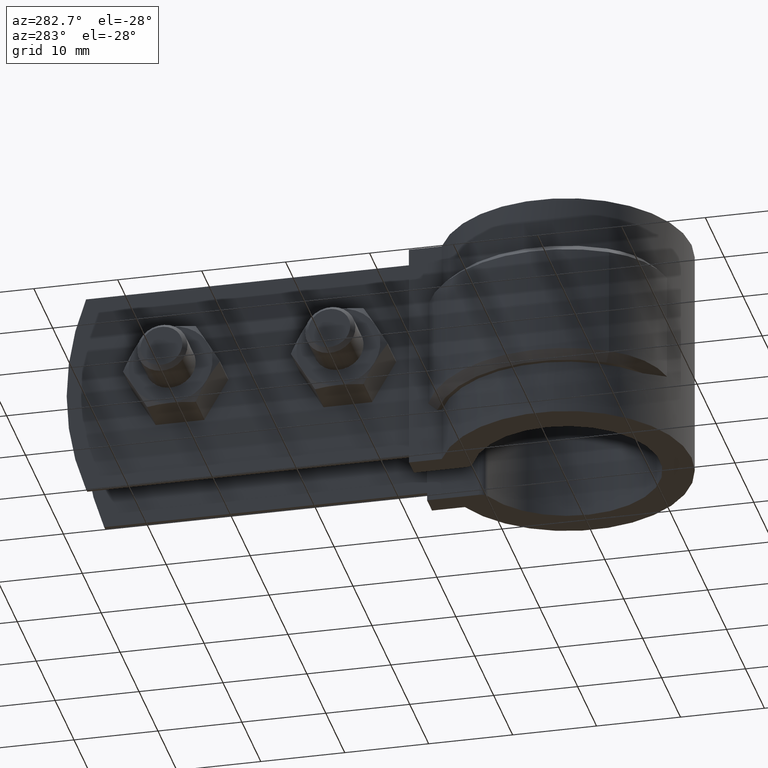
[diagram: clean part render]
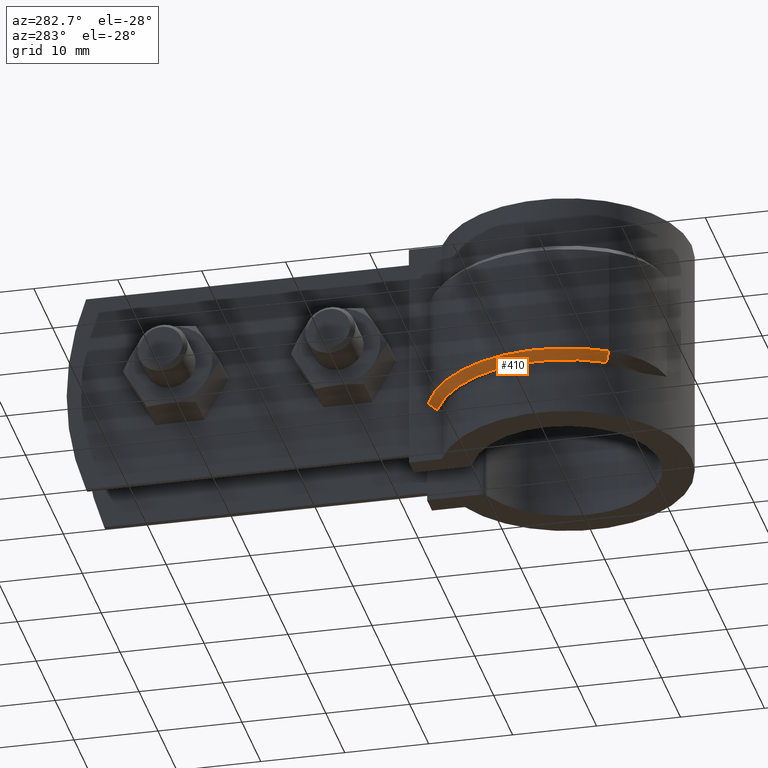
[diagram: same view with one face highlighted and labeled with its STEP entity id]
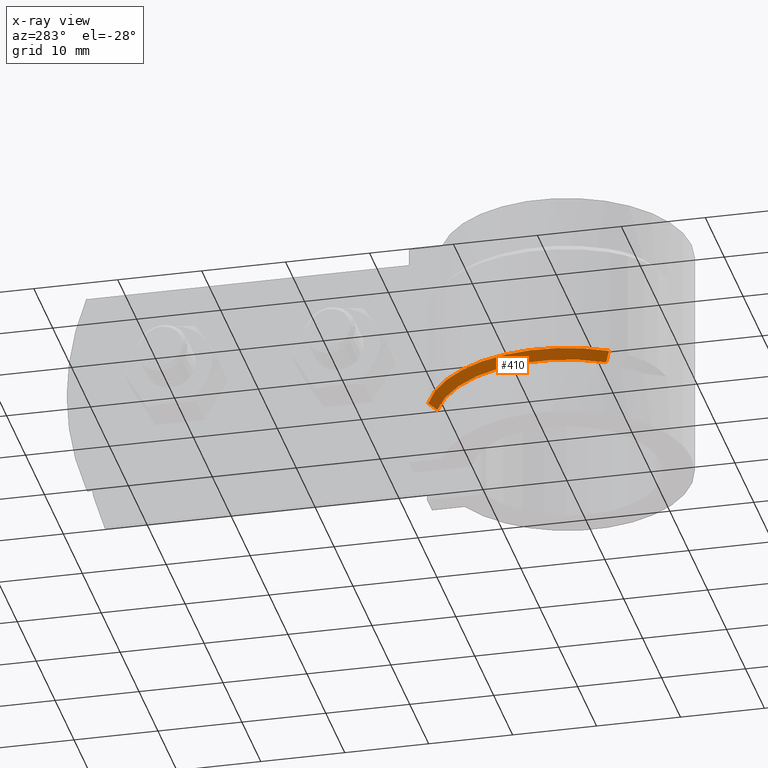
[diagram: x-ray of the same camera — body ghosted, the highlighted face saturated]
A machine part, auxiliary view. The second image highlights one B-rep face of the part: STEP entity #410.
The next image is the same camera in x-ray: the body ghosted, the highlighted face saturated — about 0% of this face is hidden behind the body in this view.
In plain terms, the highlighted conical surface has half-angle 45 deg.
Its self-contained STEP definition (entity closure, byte-faithful):
#410 = ADVANCED_FACE( '', ( #705 ), #706, .T. );
#705 = FACE_OUTER_BOUND( '', #1491, .T. );
#706 = CONICAL_SURFACE( '', #1492, 16.3550000000000, 0.785398163397447 );
#1491 = EDGE_LOOP( '', ( #3473, #3474, #3475, #3476 ) );
#1492 = AXIS2_PLACEMENT_3D( '', #3477, #3478, #3479 );
#3473 = ORIENTED_EDGE( '', *, *, #4293, .F. );
#3474 = ORIENTED_EDGE( '', *, *, #4469, .F. );
#3475 = ORIENTED_EDGE( '', *, *, #4466, .F. );
#3476 = ORIENTED_EDGE( '', *, *, #4457, .F. );
#3477 = CARTESIAN_POINT( '', ( 0.000000000000000, 0.000000000000000, -19.0000000000000 ) );
#3478 = DIRECTION( '', ( 0.000000000000000, 0.000000000000000, 1.00000000000000 ) );
#3479 = DIRECTION( '', ( 1.00000000000000, 0.000000000000000, 0.000000000000000 ) );
#4293 = EDGE_CURVE( '', #4892, #4894, #4895, .T. );
#4457 = EDGE_CURVE( '', #4894, #5170, #5171, .T. );
#4466 = EDGE_CURVE( '', #5170, #5185, #5186, .T. );
#4469 = EDGE_CURVE( '', #5185, #4892, #5189, .F. );
#4892 = VERTEX_POINT( '', #6434 );
#4894 = VERTEX_POINT( '', #6437 );
#4895 = B_SPLINE_CURVE_WITH_KNOTS( '', 3, ( #6438, #6439, #6440, #6441 ), .UNSPECIFIED., .F., .F., ( 4, 4 ), ( 0.000000000000000, 0.00147444161299851 ), .UNSPECIFIED. );
#5170 = VERTEX_POINT( '', #7461 );
#5171 = CIRCLE( '', #7462, 16.3550000000000 );
#5185 = VERTEX_POINT( '', #7488 );
#5186 = LINE( '', #7489, #7490 );
#5189 = CIRCLE( '', #7493, 15.3550000000000 );
#6434 = CARTESIAN_POINT( '', ( -6.10000000000000, 14.0913457483663, -20.0000000000000 ) );
#6437 = CARTESIAN_POINT( '', ( -6.10000000000000, 15.1748484341690, -19.0000000000000 ) );
#6438 = CARTESIAN_POINT( '', ( -6.10000000000000, 14.0913457483663, -20.0000000000000 ) );
#6439 = CARTESIAN_POINT( '', ( -6.10000000000000, 14.4534554887810, -19.6676904232475 ) );
#6440 = CARTESIAN_POINT( '', ( -6.10000000000000, 14.8145635994486, -19.3342872369313 ) );
#6441 = CARTESIAN_POINT( '', ( -6.10000000000000, 15.1748484341690, -19.0000000000000 ) );
#7461 = CARTESIAN_POINT( '', ( -14.1597412067696, -8.18460469157254, -19.0000000000000 ) );
#7462 = AXIS2_PLACEMENT_3D( '', #8325, #8326, #8327 );
#7488 = CARTESIAN_POINT( '', ( -13.2939667520604, -7.68417028670721, -20.0000000000000 ) );
#7489 = CARTESIAN_POINT( '', ( -14.1597412067696, -8.18460469157254, -19.0000000000000 ) );
#7490 = VECTOR( '', #8334, 1000.00000000000 );
#7493 = AXIS2_PLACEMENT_3D( '', #8341, #8342, #8343 );
#8325 = CARTESIAN_POINT( '', ( 0.000000000000000, 0.000000000000000, -19.0000000000000 ) );
#8326 = DIRECTION( '', ( 0.000000000000000, 0.000000000000000, 1.00000000000000 ) );
#8327 = DIRECTION( '', ( 1.00000000000000, 0.000000000000000, 0.000000000000000 ) );
#8334 = DIRECTION( '', ( 0.612194987902986, 0.353860561219332, -0.707106781186549 ) );
#8341 = CARTESIAN_POINT( '', ( 0.000000000000000, 0.000000000000000, -20.0000000000000 ) );
#8342 = DIRECTION( '', ( 0.000000000000000, 0.000000000000000, 1.00000000000000 ) );
#8343 = DIRECTION( '', ( 1.00000000000000, 0.000000000000000, 0.000000000000000 ) );